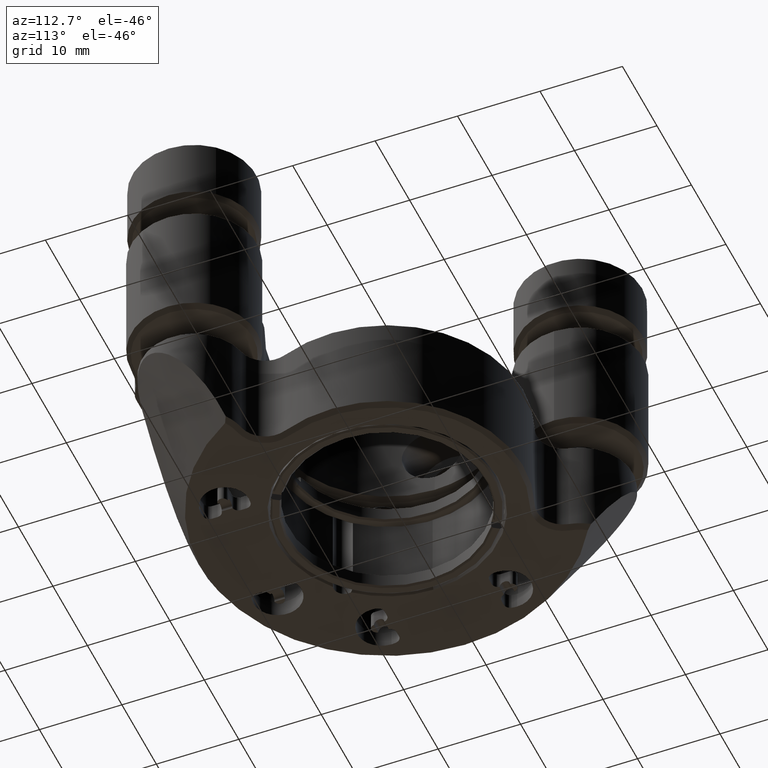
[diagram: clean part render]
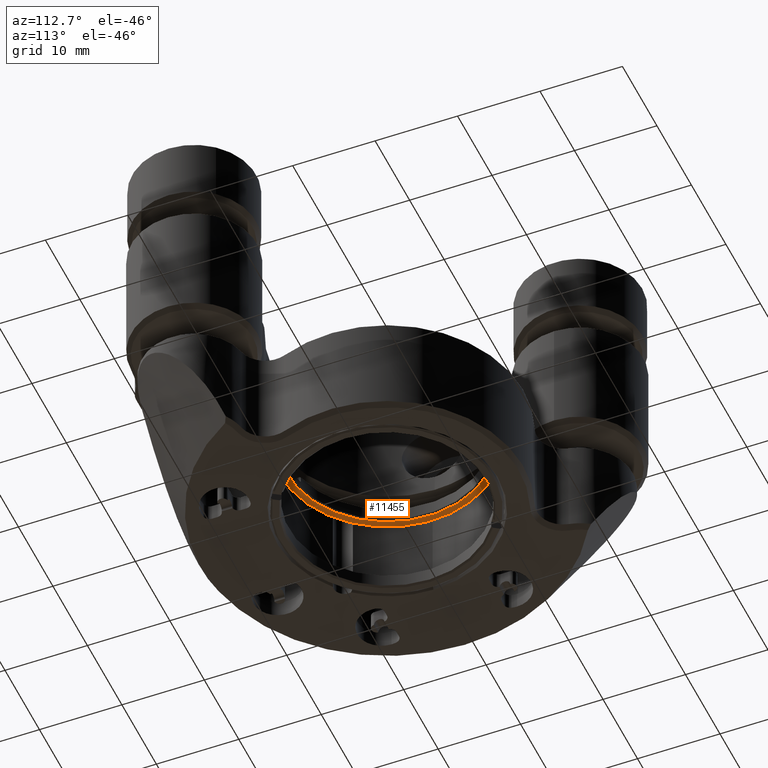
[diagram: same view with one face highlighted and labeled with its STEP entity id]
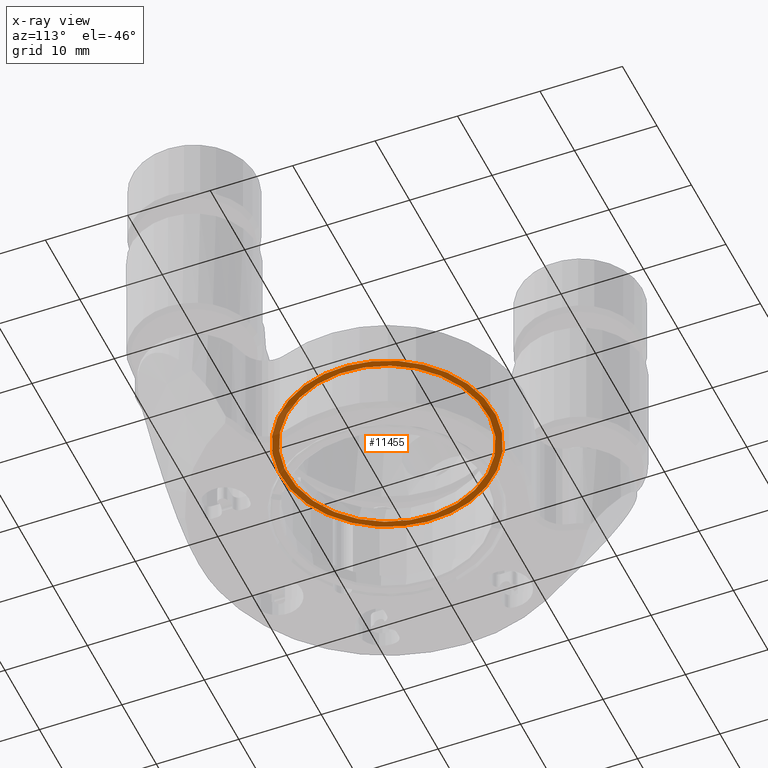
[diagram: x-ray of the same camera — body ghosted, the highlighted face saturated]
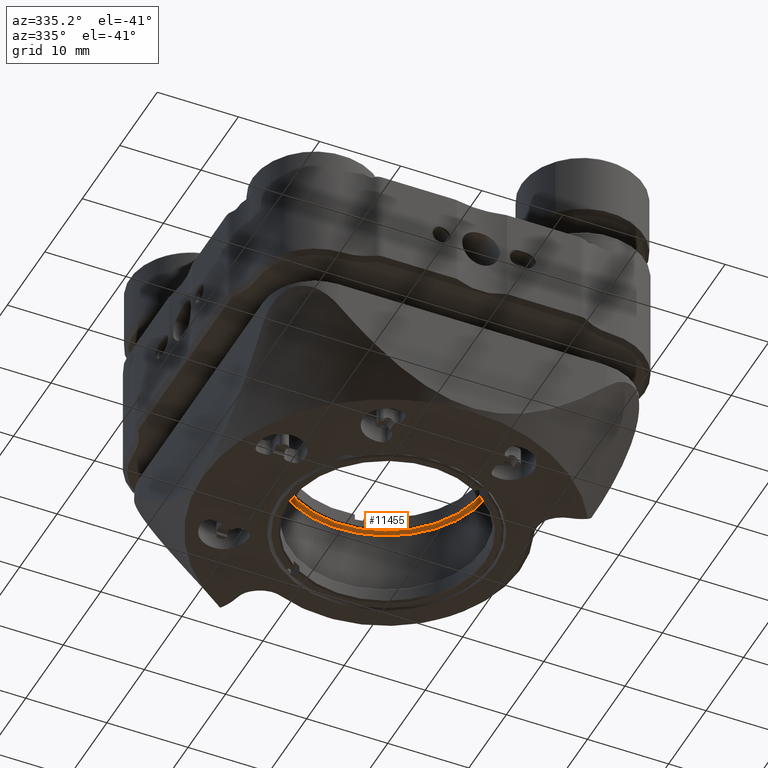
[diagram: same view with one face highlighted and labeled with its STEP entity id]
A machine part, auxiliary view. The second image highlights one B-rep face of the part: STEP entity #11455.
The next image is the same camera in x-ray: the body ghosted, the highlighted face saturated — about 30% of this face is hidden behind the body in this view.
A second angle (auxiliary view) of the same face is appended — the face is thin or edge-on in the first view.
In plain terms, the highlighted planar face has unit normal (0, 0, -1).
Its self-contained STEP definition (entity closure, byte-faithful):
#1270 = EDGE_CURVE ( 'NONE', #12058, #5056, #6021, .T. ) ;
#2381 = PLANE ( 'NONE',  #17296 ) ;
#3204 = ORIENTED_EDGE ( 'NONE', *, *, #14864, .T. ) ;
#4605 = EDGE_LOOP ( 'NONE', ( #6086, #16730 ) ) ;
#5056 = VERTEX_POINT ( 'NONE', #18909 ) ;
#5672 = CARTESIAN_POINT ( 'NONE',  ( 0.000000000000000000, 0.000000000000000000, 1.000000000000000000 ) ) ;
#6021 = CIRCLE ( 'NONE', #15249, 12.94499999999998963 ) ;
#6086 = ORIENTED_EDGE ( 'NONE', *, *, #8327, .T. ) ;
#6389 = DIRECTION ( 'NONE',  ( 1.000000000000000000, 0.000000000000000000, 0.000000000000000000 ) ) ;
#7301 = VERTEX_POINT ( 'NONE', #15871 ) ;
#7485 = CARTESIAN_POINT ( 'NONE',  ( 0.000000000000000000, 0.000000000000000000, 1.000000000000000000 ) ) ;
#7984 = CARTESIAN_POINT ( 'NONE',  ( 0.000000000000000000, 0.000000000000000000, 1.000000000000000000 ) ) ;
#8327 = EDGE_CURVE ( 'NONE', #5056, #12058, #19647, .T. ) ;
#8611 = FACE_OUTER_BOUND ( 'NONE', #4605, .T. ) ;
#8934 = DIRECTION ( 'NONE',  ( 0.000000000000000000, 0.000000000000000000, 1.000000000000000000 ) ) ;
#9441 = AXIS2_PLACEMENT_3D ( 'NONE', #7984, #9498, #6389 ) ;
#9498 = DIRECTION ( 'NONE',  ( -0.000000000000000000, -0.000000000000000000, -1.000000000000000000 ) ) ;
#10448 = CARTESIAN_POINT ( 'NONE',  ( 0.000000000000000000, 0.000000000000000000, 1.000000000000000000 ) ) ;
#10474 = VERTEX_POINT ( 'NONE', #11603 ) ;
#10720 = CARTESIAN_POINT ( 'NONE',  ( 0.000000000000000000, 0.000000000000000000, 1.000000000000000000 ) ) ;
#10940 = DIRECTION ( 'NONE',  ( 1.000000000000000000, 0.000000000000000000, 0.000000000000000000 ) ) ;
#11455 = ADVANCED_FACE ( 'NONE', ( #14736, #8611 ), #2381, .T. ) ;
#11521 = CIRCLE ( 'NONE', #18704, 12.14500000000000490 ) ;
#11603 = CARTESIAN_POINT ( 'NONE',  ( 12.14500000000000490, 0.000000000000000000, 1.000000000000000000 ) ) ;
#11977 = DIRECTION ( 'NONE',  ( 1.000000000000000000, 0.000000000000000000, 0.000000000000000000 ) ) ;
#12058 = VERTEX_POINT ( 'NONE', #17049 ) ;
#12201 = DIRECTION ( 'NONE',  ( 0.000000000000000000, 0.000000000000000000, 1.000000000000000000 ) ) ;
#12590 = ORIENTED_EDGE ( 'NONE', *, *, #12762, .T. ) ;
#12762 = EDGE_CURVE ( 'NONE', #10474, #7301, #11521, .T. ) ;
#14554 = EDGE_LOOP ( 'NONE', ( #12590, #3204 ) ) ;
#14736 = FACE_BOUND ( 'NONE', #14554, .T. ) ;
#14864 = EDGE_CURVE ( 'NONE', #7301, #10474, #16267, .T. ) ;
#15249 = AXIS2_PLACEMENT_3D ( 'NONE', #10720, #20674, #10940 ) ;
#15264 = DIRECTION ( 'NONE',  ( 1.000000000000000000, 0.000000000000000000, -0.000000000000000000 ) ) ;
#15871 = CARTESIAN_POINT ( 'NONE',  ( -12.14500000000000490, 1.487333537564460985E-15, 1.000000000000000000 ) ) ;
#16267 = CIRCLE ( 'NONE', #9441, 12.14500000000000490 ) ;
#16730 = ORIENTED_EDGE ( 'NONE', *, *, #1270, .T. ) ;
#17049 = CARTESIAN_POINT ( 'NONE',  ( 12.94499999999998963, 1.597551749487721396E-15, 1.000000000000000000 ) ) ;
#17296 = AXIS2_PLACEMENT_3D ( 'NONE', #10448, #8934, #15264 ) ;
#17673 = DIRECTION ( 'NONE',  ( -0.000000000000000000, -0.000000000000000000, -1.000000000000000000 ) ) ;
#18704 = AXIS2_PLACEMENT_3D ( 'NONE', #7485, #17673, #19385 ) ;
#18909 = CARTESIAN_POINT ( 'NONE',  ( -12.94499999999998963, 0.000000000000000000, 1.000000000000000000 ) ) ;
#19314 = AXIS2_PLACEMENT_3D ( 'NONE', #5672, #12201, #11977 ) ;
#19385 = DIRECTION ( 'NONE',  ( 1.000000000000000000, 0.000000000000000000, 0.000000000000000000 ) ) ;
#19647 = CIRCLE ( 'NONE', #19314, 12.94499999999998963 ) ;
#20674 = DIRECTION ( 'NONE',  ( 0.000000000000000000, 0.000000000000000000, 1.000000000000000000 ) ) ;